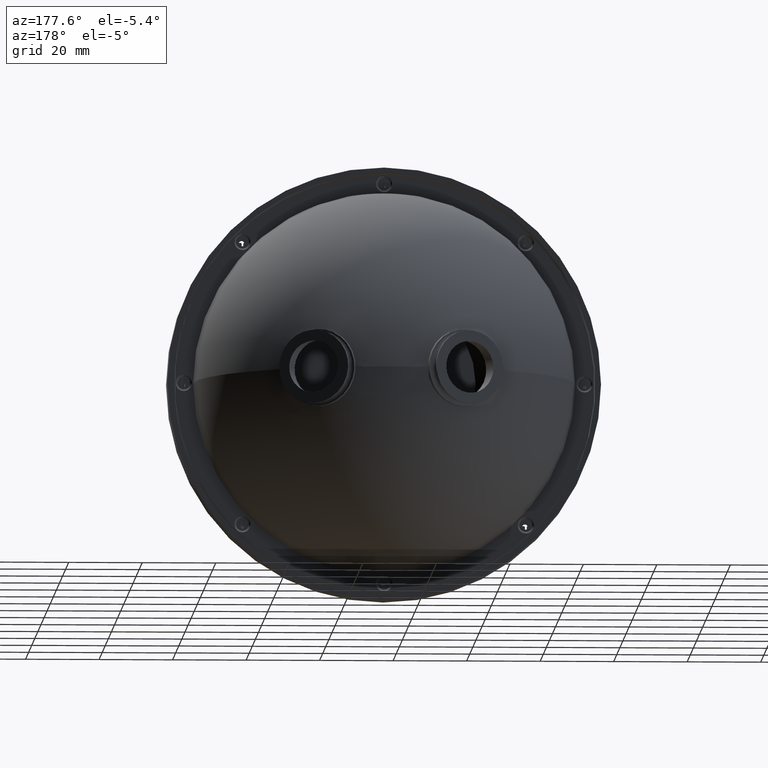
[diagram: clean part render]
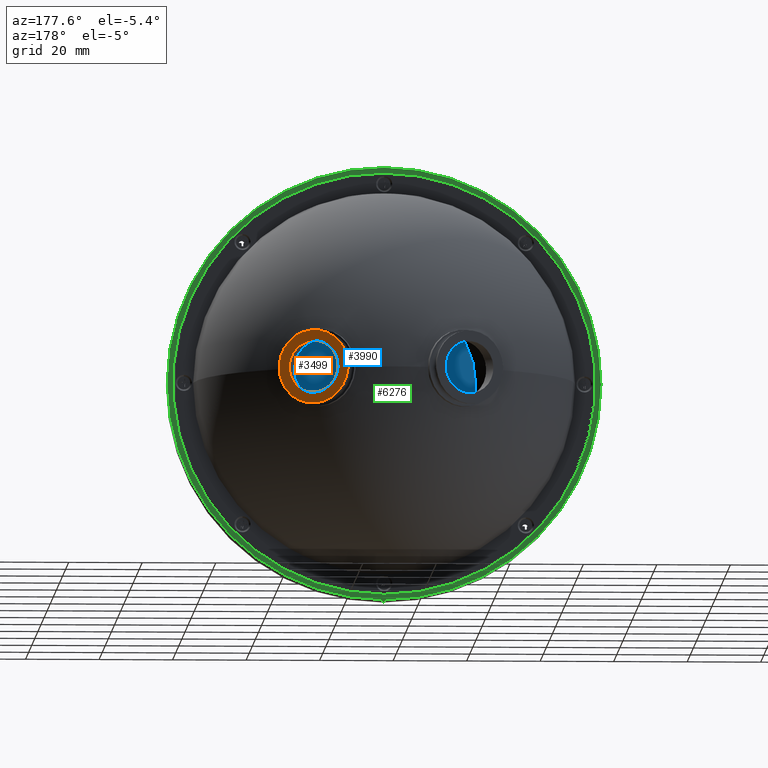
[diagram: same view with three faces highlighted in distinct colors, each labeled with its STEP entity id]
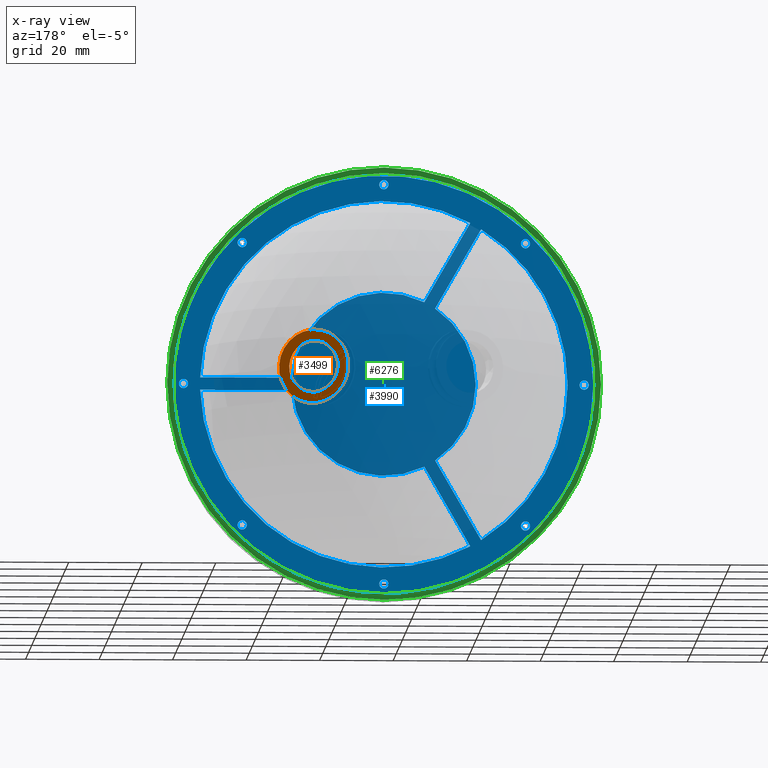
[diagram: x-ray of the same camera — body ghosted, the three highlighted faces saturated]
A machine part, auxiliary view with three faces highlighted in distinct colors.
The next image is the same camera in x-ray (body ghosted, the three faces saturated) — at least one of them is partly hidden behind the body in this view.
Their STEP definitions:

[orange] entity #3499 — the highlighted planar face has unit normal (0.3827, 0.9239, 0).
#103 = CARTESIAN_POINT ( 'NONE',  ( 29.73420159731042745, 33.39161326380353501, -1.117326338284089420E-62 ) ) ;
#182 = ORIENTED_EDGE ( 'NONE', *, *, #4675, .T. ) ;
#236 = CIRCLE ( 'NONE', #991, 10.00000000000000000 ) ;
#254 = EDGE_CURVE ( 'NONE', #2555, #5893, #5644, .T. ) ;
#287 = CIRCLE ( 'NONE', #4168, 7.064285714285714057 ) ;
#793 = CARTESIAN_POINT ( 'NONE',  ( 29.73420159731042745, 33.39161326380353501, -1.117326338284089420E-62 ) ) ;
#991 = AXIS2_PLACEMENT_3D ( 'NONE', #1562, #1018, #5641 ) ;
#1018 = DIRECTION ( 'NONE',  ( 0.3826834323650903369, 0.9238795325112865164, 4.557872517964702724E-64 ) ) ;
#1112 = AXIS2_PLACEMENT_3D ( 'NONE', #2509, #2483, #1559 ) ;
#1301 = DIRECTION ( 'NONE',  ( 0.3826834323650903369, 0.9238795325112865164, 4.557872517964702724E-64 ) ) ;
#1559 = DIRECTION ( 'NONE',  ( 0.04730986693102653268, -0.01959638851689762123, 0.9986880183761410734 ) ) ;
#1562 = CARTESIAN_POINT ( 'NONE',  ( 29.73420159731042745, 33.39161326380353501, -1.117326338284089420E-62 ) ) ;
#2197 = AXIS2_PLACEMENT_3D ( 'NONE', #793, #1301, #5415 ) ;
#2483 = DIRECTION ( 'NONE',  ( 0.3826834323650903369, 0.9238795325112866275, 3.469446951953614189E-18 ) ) ;
#2509 = CARTESIAN_POINT ( 'NONE',  ( 29.73420159731042745, 33.39161326380353501, -1.117326338284089420E-62 ) ) ;
#2549 = CARTESIAN_POINT ( 'NONE',  ( 30.06841201441603673, 33.25317877635201569, 7.055017501242882183 ) ) ;
#2555 = VERTEX_POINT ( 'NONE', #5716 ) ;
#2579 = PLANE ( 'NONE',  #1112 ) ;
#2652 = DIRECTION ( 'NONE',  ( -0.3826834323650903369, -0.9238795325112865164, -4.557872517964702724E-64 ) ) ;
#2907 = DIRECTION ( 'NONE',  ( 0.04730986693102647717, -0.01959638851689719796, 0.9986880183761410734 ) ) ;
#3219 = ORIENTED_EDGE ( 'NONE', *, *, #5829, .T. ) ;
#3243 = EDGE_CURVE ( 'NONE', #4657, #3480, #287, .T. ) ;
#3297 = DIRECTION ( 'NONE',  ( 0.04730986693102647717, -0.01959638851689719796, 0.9986880183761410734 ) ) ;
#3480 = VERTEX_POINT ( 'NONE', #2549 ) ;
#3499 = ADVANCED_FACE ( 'NONE', ( #6172, #5012 ), #2579, .T. ) ;
#3850 = CIRCLE ( 'NONE', #5581, 7.064285714285714057 ) ;
#4168 = AXIS2_PLACEMENT_3D ( 'NONE', #103, #2652, #3297 ) ;
#4464 = EDGE_LOOP ( 'NONE', ( #5977, #3219 ) ) ;
#4543 = CARTESIAN_POINT ( 'NONE',  ( 29.39999118020481816, 33.53004775125504722, -7.055017501242882183 ) ) ;
#4560 = EDGE_LOOP ( 'NONE', ( #5612, #182 ) ) ;
#4657 = VERTEX_POINT ( 'NONE', #4543 ) ;
#4675 = EDGE_CURVE ( 'NONE', #5893, #2555, #236, .T. ) ;
#4919 = CARTESIAN_POINT ( 'NONE',  ( 30.20730026662069534, 33.19564937863456322, 9.986880183761410734 ) ) ;
#5012 = FACE_OUTER_BOUND ( 'NONE', #4560, .T. ) ;
#5307 = DIRECTION ( 'NONE',  ( -0.3826834323650903369, -0.9238795325112865164, -4.557872517964702724E-64 ) ) ;
#5410 = CARTESIAN_POINT ( 'NONE',  ( 29.73420159731042745, 33.39161326380353501, -1.117326338284089420E-62 ) ) ;
#5415 = DIRECTION ( 'NONE',  ( 0.04730986693102651186, -0.01959638851689732286, 0.9986880183761410734 ) ) ;
#5581 = AXIS2_PLACEMENT_3D ( 'NONE', #5410, #5307, #2907 ) ;
#5612 = ORIENTED_EDGE ( 'NONE', *, *, #254, .T. ) ;
#5641 = DIRECTION ( 'NONE',  ( 0.04730986693102651186, -0.01959638851689732286, 0.9986880183761410734 ) ) ;
#5644 = CIRCLE ( 'NONE', #2197, 10.00000000000000000 ) ;
#5716 = CARTESIAN_POINT ( 'NONE',  ( 29.26110292800016310, 33.58757714897250679, -9.986880183761410734 ) ) ;
#5829 = EDGE_CURVE ( 'NONE', #3480, #4657, #3850, .T. ) ;
#5893 = VERTEX_POINT ( 'NONE', #4919 ) ;
#5977 = ORIENTED_EDGE ( 'NONE', *, *, #3243, .T. ) ;
#6172 = FACE_BOUND ( 'NONE', #4464, .T. ) ;

[blue] entity #3990 — the highlighted planar face has unit normal (0, 1, 0).
#45 = CARTESIAN_POINT ( 'NONE',  ( 45.77133852427575533, -17.91086588718419748, -38.53731957466661839 ) ) ;
#55 = FACE_BOUND ( 'NONE', #5394, .T. ) ;
#59 = DIRECTION ( 'NONE',  ( -1.000000000000000000, 0.000000000000000000, -4.639336070329090765E-15 ) ) ;
#60 = CIRCLE ( 'NONE', #936, 1.250000000000001110 ) ;
#115 = PLANE ( 'NONE',  #4454 ) ;
#147 = CARTESIAN_POINT ( 'NONE',  ( 61.73401894960840508, -17.91086588718419748, 5.052028614788056940E-13 ) ) ;
#150 = AXIS2_PLACEMENT_3D ( 'NONE', #1701, #2244, #5940 ) ;
#158 = FACE_BOUND ( 'NONE', #1373, .T. ) ;
#190 = CARTESIAN_POINT ( 'NONE',  ( 8.484018949608405080, -17.91086588718419748, -3.126989831670705242E-13 ) ) ;
#204 = CARTESIAN_POINT ( 'NONE',  ( 48.27133852427575533, -17.91086588718419748, -38.53731957466660418 ) ) ;
#238 = DIRECTION ( 'NONE',  ( -1.000000000000000000, 0.000000000000000000, -5.551115123125777969E-15 ) ) ;
#242 = AXIS2_PLACEMENT_3D ( 'NONE', #5578, #1420, #948 ) ;
#252 = DIRECTION ( 'NONE',  ( -1.000000000000000000, 0.000000000000000000, -5.551115123125762192E-15 ) ) ;
#262 = DIRECTION ( 'NONE',  ( -1.000000000000000000, 0.000000000000000000, -5.551115123125777969E-15 ) ) ;
#377 = EDGE_LOOP ( 'NONE', ( #4659, #735 ) ) ;
#408 = AXIS2_PLACEMENT_3D ( 'NONE', #5826, #663, #262 ) ;
#439 = CARTESIAN_POINT ( 'NONE',  ( -30.05330062505868582, -17.91086588718419748, 38.53731957466627733 ) ) ;
#535 = DIRECTION ( 'NONE',  ( -1.000000000000000000, 0.000000000000000000, -4.639336070329089976E-15 ) ) ;
#563 = CARTESIAN_POINT ( 'NONE',  ( 65.48401894960841219, -17.91086588718419748, -4.825682715831244131E-14 ) ) ;
#603 = DIRECTION ( 'NONE',  ( 0.000000000000000000, 1.000000000000000000, 0.000000000000000000 ) ) ;
#606 = CARTESIAN_POINT ( 'NONE',  ( 8.484018949608405080, -17.91086588718419748, -3.126989831670705242E-13 ) ) ;
#660 = FACE_BOUND ( 'NONE', #2032, .T. ) ;
#663 = DIRECTION ( 'NONE',  ( 0.000000000000000000, 1.000000000000000000, 0.000000000000000000 ) ) ;
#697 = CARTESIAN_POINT ( 'NONE',  ( 9.734018949609039240, -17.91086588718419748, -54.50000000000030553 ) ) ;
#735 = ORIENTED_EDGE ( 'NONE', *, *, #3287, .F. ) ;
#776 = CIRCLE ( 'NONE', #242, 1.250000000000001110 ) ;
#802 = EDGE_CURVE ( 'NONE', #4066, #4029, #4056, .T. ) ;
#819 = VECTOR ( 'NONE', #1834, 1000.000000000000000 ) ;
#830 = VERTEX_POINT ( 'NONE', #1101 ) ;
#838 = DIRECTION ( 'NONE',  ( -1.000000000000000000, 0.000000000000000000, -4.639336070329049744E-15 ) ) ;
#846 = CARTESIAN_POINT ( 'NONE',  ( -15.02928368549254934, -17.91086588718419748, -44.12623481773834300 ) ) ;
#853 = DIRECTION ( 'NONE',  ( -1.000000000000000000, 0.000000000000000000, -5.551115123125777969E-15 ) ) ;
#880 = DIRECTION ( 'NONE',  ( -1.000000000000000000, 0.000000000000000000, -4.639336070329049744E-15 ) ) ;
#892 = CARTESIAN_POINT ( 'NONE',  ( -15.02928368549234150, -17.91086588718419748, 44.12623481773781720 ) ) ;
#915 = VECTOR ( 'NONE', #4655, 999.9999999999998863 ) ;
#936 = AXIS2_PLACEMENT_3D ( 'NONE', #5301, #3787, #5341 ) ;
#948 = DIRECTION ( 'NONE',  ( -1.000000000000000000, 0.000000000000000000, -5.551115123125777969E-15 ) ) ;
#966 = VERTEX_POINT ( 'NONE', #3776 ) ;
#973 = EDGE_CURVE ( 'NONE', #2241, #2166, #5327, .T. ) ;
#1003 = CARTESIAN_POINT ( 'NONE',  ( 7.234018949609037463, -17.91086588718419748, -54.50000000000031974 ) ) ;
#1040 = FACE_BOUND ( 'NONE', #4074, .T. ) ;
#1096 = FACE_OUTER_BOUND ( 'NONE', #3708, .T. ) ;
#1101 = CARTESIAN_POINT ( 'NONE',  ( 9.734018949608152838, -17.91086588718419748, 54.49999999999969447 ) ) ;
#1142 = VERTEX_POINT ( 'NONE', #5041 ) ;
#1147 = VERTEX_POINT ( 'NONE', #1419 ) ;
#1149 = CIRCLE ( 'NONE', #6646, 25.00000000000000000 ) ;
#1154 = CIRCLE ( 'NONE', #6651, 1.250000000000001110 ) ;
#1201 = CARTESIAN_POINT ( 'NONE',  ( 8.484018949608405080, -17.91086588718419748, -3.126989831670705242E-13 ) ) ;
#1218 = DIRECTION ( 'NONE',  ( 0.000000000000000000, 1.000000000000000000, 0.000000000000000000 ) ) ;
#1250 = AXIS2_PLACEMENT_3D ( 'NONE', #2716, #4838, #6245 ) ;
#1279 = DIRECTION ( 'NONE',  ( 0.000000000000000000, 1.000000000000000000, 0.000000000000000000 ) ) ;
#1323 = VECTOR ( 'NONE', #6626, 1000.000000000000000 ) ;
#1327 = ORIENTED_EDGE ( 'NONE', *, *, #5378, .F. ) ;
#1346 = EDGE_CURVE ( 'NONE', #966, #4974, #1901, .T. ) ;
#1365 = AXIS2_PLACEMENT_3D ( 'NONE', #4669, #3106, #2715 ) ;
#1373 = EDGE_LOOP ( 'NONE', ( #2108, #4916 ) ) ;
#1377 = ORIENTED_EDGE ( 'NONE', *, *, #3013, .F. ) ;
#1409 = DIRECTION ( 'NONE',  ( 0.000000000000000000, 1.000000000000000000, 0.000000000000000000 ) ) ;
#1419 = CARTESIAN_POINT ( 'NONE',  ( -2.514804378093888459, -17.91086588718419748, -22.45052082705448626 ) ) ;
#1420 = DIRECTION ( 'NONE',  ( 0.000000000000000000, 1.000000000000000000, 0.000000000000000000 ) ) ;
#1457 = VERTEX_POINT ( 'NONE', #2832 ) ;
#1476 = VERTEX_POINT ( 'NONE', #697 ) ;
#1478 = EDGE_CURVE ( 'NONE', #1880, #3237, #2450, .T. ) ;
#1506 = EDGE_CURVE ( 'NONE', #6056, #1142, #3101, .T. ) ;
#1508 = VERTEX_POINT ( 'NONE', #3549 ) ;
#1523 = LINE ( 'NONE', #4570, #1671 ) ;
#1555 = ORIENTED_EDGE ( 'NONE', *, *, #3956, .F. ) ;
#1568 = CIRCLE ( 'NONE', #1782, 25.00000000000000000 ) ;
#1579 = DIRECTION ( 'NONE',  ( -1.000000000000000000, 0.000000000000000000, -4.639336070329090765E-15 ) ) ;
#1591 = ORIENTED_EDGE ( 'NONE', *, *, #1478, .F. ) ;
#1601 = ORIENTED_EDGE ( 'NONE', *, *, #1960, .T. ) ;
#1652 = CARTESIAN_POINT ( 'NONE',  ( -47.26598105039159492, -17.91086588718419748, -7.616277020548679434E-13 ) ) ;
#1671 = VECTOR ( 'NONE', #5608, 1000.000000000000000 ) ;
#1701 = CARTESIAN_POINT ( 'NONE',  ( -30.05330062505868582, -17.91086588718419748, 38.53731957466627733 ) ) ;
#1782 = AXIS2_PLACEMENT_3D ( 'NONE', #5621, #4085, #4624 ) ;
#1791 = ORIENTED_EDGE ( 'NONE', *, *, #1346, .F. ) ;
#1792 = CIRCLE ( 'NONE', #3531, 1.250000000000001110 ) ;
#1796 = CIRCLE ( 'NONE', #2343, 1.250000000000001110 ) ;
#1834 = DIRECTION ( 'NONE',  ( -0.4999999999999959477, 0.000000000000000000, 0.8660254037844409281 ) ) ;
#1869 = CIRCLE ( 'NONE', #5636, 1.250000000000004663 ) ;
#1877 = CARTESIAN_POINT ( 'NONE',  ( 64.23401894960841219, -17.91086588718419748, 5.169542825045217677E-13 ) ) ;
#1880 = VERTEX_POINT ( 'NONE', #892 ) ;
#1890 = CIRCLE ( 'NONE', #150, 1.250000000000004663 ) ;
#1901 = CIRCLE ( 'NONE', #4494, 1.250000000000004663 ) ;
#1952 = CARTESIAN_POINT ( 'NONE',  ( 47.02133852427459004, -17.91086588718419748, 38.53731957466719393 ) ) ;
#1960 = EDGE_CURVE ( 'NONE', #3476, #2159, #2516, .T. ) ;
#2010 = EDGE_CURVE ( 'NONE', #4974, #966, #1869, .T. ) ;
#2032 = EDGE_LOOP ( 'NONE', ( #3183, #2630, #4587, #1591 ) ) ;
#2091 = CARTESIAN_POINT ( 'NONE',  ( -48.51598105039160913, -17.91086588718419748, -5.701606524206887667E-13 ) ) ;
#2108 = ORIENTED_EDGE ( 'NONE', *, *, #3280, .F. ) ;
#2128 = FACE_BOUND ( 'NONE', #3885, .T. ) ;
#2137 = VERTEX_POINT ( 'NONE', #204 ) ;
#2159 = VERTEX_POINT ( 'NONE', #3925 ) ;
#2166 = VERTEX_POINT ( 'NONE', #3395 ) ;
#2183 = CARTESIAN_POINT ( 'NONE',  ( 8.484018949608405080, -17.91086588718419748, -3.126989831670705242E-13 ) ) ;
#2221 = ORIENTED_EDGE ( 'NONE', *, *, #3363, .F. ) ;
#2241 = VERTEX_POINT ( 'NONE', #2508 ) ;
#2244 = DIRECTION ( 'NONE',  ( 0.000000000000000000, 1.000000000000000000, 0.000000000000000000 ) ) ;
#2251 = EDGE_CURVE ( 'NONE', #2786, #3002, #3298, .T. ) ;
#2262 = EDGE_CURVE ( 'NONE', #1880, #1508, #1523, .T. ) ;
#2291 = ORIENTED_EDGE ( 'NONE', *, *, #5507, .T. ) ;
#2302 = CARTESIAN_POINT ( 'NONE',  ( 13.00741617435375019, -17.91086588718419748, 4.434753816074683108 ) ) ;
#2343 = AXIS2_PLACEMENT_3D ( 'NONE', #3968, #3471, #853 ) ;
#2345 = CARTESIAN_POINT ( 'NONE',  ( -28.80330062505804634, -17.91086588718419748, -38.53731957466752789 ) ) ;
#2348 = ORIENTED_EDGE ( 'NONE', *, *, #4981, .T. ) ;
#2426 = DIRECTION ( 'NONE',  ( 0.000000000000000000, 1.000000000000000000, 0.000000000000000000 ) ) ;
#2438 = AXIS2_PLACEMENT_3D ( 'NONE', #1201, #1279, #3880 ) ;
#2450 = CIRCLE ( 'NONE', #5039, 50.00000000000000000 ) ;
#2466 = DIRECTION ( 'NONE',  ( -1.000000000000000000, 0.000000000000000000, -4.639336070329090765E-15 ) ) ;
#2476 = EDGE_CURVE ( 'NONE', #6367, #1476, #2550, .T. ) ;
#2481 = ORIENTED_EDGE ( 'NONE', *, *, #6359, .T. ) ;
#2508 = CARTESIAN_POINT ( 'NONE',  ( -17.97377005835964425, -17.91086588718419748, -42.42623481773833305 ) ) ;
#2516 = LINE ( 'NONE', #3629, #1323 ) ;
#2550 = CIRCLE ( 'NONE', #5230, 1.250000000000001110 ) ;
#2556 = AXIS2_PLACEMENT_3D ( 'NONE', #5810, #1218, #5371 ) ;
#2630 = ORIENTED_EDGE ( 'NONE', *, *, #2896, .T. ) ;
#2632 = DIRECTION ( 'NONE',  ( 0.000000000000000000, 1.000000000000000000, 0.000000000000000000 ) ) ;
#2670 = FACE_BOUND ( 'NONE', #4263, .T. ) ;
#2671 = EDGE_CURVE ( 'NONE', #2824, #2795, #1568, .T. ) ;
#2694 = VERTEX_POINT ( 'NONE', #45 ) ;
#2715 = DIRECTION ( 'NONE',  ( -1.000000000000000000, 0.000000000000000000, -5.551115123125777969E-15 ) ) ;
#2716 = CARTESIAN_POINT ( 'NONE',  ( 8.484018949608405080, -17.91086588718419748, -3.126989831670705242E-13 ) ) ;
#2730 = FACE_BOUND ( 'NONE', #377, .T. ) ;
#2751 = DIRECTION ( 'NONE',  ( -1.000000000000000000, 0.000000000000000000, -5.551115123125762192E-15 ) ) ;
#2766 = CARTESIAN_POINT ( 'NONE',  ( -5.459290750960981597, -17.91086588718419748, -20.75052082705448697 ) ) ;
#2786 = VERTEX_POINT ( 'NONE', #147 ) ;
#2795 = VERTEX_POINT ( 'NONE', #5352 ) ;
#2824 = VERTEX_POINT ( 'NONE', #2766 ) ;
#2832 = CARTESIAN_POINT ( 'NONE',  ( -28.80330062505868582, -17.91086588718419748, 38.53731957466628444 ) ) ;
#2872 = DIRECTION ( 'NONE',  ( 0.000000000000000000, 1.000000000000000000, 0.000000000000000000 ) ) ;
#2896 = EDGE_CURVE ( 'NONE', #1508, #3995, #4275, .T. ) ;
#2917 = CARTESIAN_POINT ( 'NONE',  ( -46.01598105039158781, -17.91086588718419748, -7.558285319669565561E-13 ) ) ;
#2961 = DIRECTION ( 'NONE',  ( 0.000000000000000000, 1.000000000000000000, 0.000000000000000000 ) ) ;
#2984 = AXIS2_PLACEMENT_3D ( 'NONE', #5510, #5639, #880 ) ;
#2989 = FACE_BOUND ( 'NONE', #5951, .T. ) ;
#3002 = VERTEX_POINT ( 'NONE', #1877 ) ;
#3012 = DIRECTION ( 'NONE',  ( -1.000000000000000000, 0.000000000000000000, -5.551115123125777969E-15 ) ) ;
#3013 = EDGE_CURVE ( 'NONE', #3002, #2786, #1792, .T. ) ;
#3076 = VECTOR ( 'NONE', #4796, 1000.000000000000000 ) ;
#3101 = CIRCLE ( 'NONE', #5133, 1.250000000000001110 ) ;
#3106 = DIRECTION ( 'NONE',  ( 0.000000000000000000, 1.000000000000000000, 0.000000000000000000 ) ) ;
#3111 = DIRECTION ( 'NONE',  ( 0.000000000000000000, 1.000000000000000000, 0.000000000000000000 ) ) ;
#3117 = CARTESIAN_POINT ( 'NONE',  ( 33.42615197788006043, -17.91086588718419748, 1.699999999999802780 ) ) ;
#3156 = CARTESIAN_POINT ( 'NONE',  ( -30.05330062505804989, -17.91086588718419748, -38.53731957466753499 ) ) ;
#3183 = ORIENTED_EDGE ( 'NONE', *, *, #2262, .T. ) ;
#3237 = VERTEX_POINT ( 'NONE', #4712 ) ;
#3249 = DIRECTION ( 'NONE',  ( -1.000000000000000000, 0.000000000000000000, -4.639336070329090765E-15 ) ) ;
#3251 = EDGE_CURVE ( 'NONE', #4029, #4066, #5347, .T. ) ;
#3280 = EDGE_CURVE ( 'NONE', #4832, #6516, #60, .T. ) ;
#3287 = EDGE_CURVE ( 'NONE', #1476, #6367, #1796, .T. ) ;
#3298 = CIRCLE ( 'NONE', #2984, 1.250000000000001110 ) ;
#3309 = CIRCLE ( 'NONE', #4153, 50.00000000000000000 ) ;
#3363 = EDGE_CURVE ( 'NONE', #2137, #2694, #4899, .T. ) ;
#3374 = CARTESIAN_POINT ( 'NONE',  ( -30.05330062505804989, -17.91086588718419748, -38.53731957466753499 ) ) ;
#3390 = ORIENTED_EDGE ( 'NONE', *, *, #6199, .F. ) ;
#3395 = CARTESIAN_POINT ( 'NONE',  ( -17.97377005835944175, -17.91086588718419748, 42.42623481773782146 ) ) ;
#3452 = ORIENTED_EDGE ( 'NONE', *, *, #2671, .T. ) ;
#3471 = DIRECTION ( 'NONE',  ( 0.000000000000000000, 1.000000000000000000, 0.000000000000000000 ) ) ;
#3476 = VERTEX_POINT ( 'NONE', #3586 ) ;
#3485 = DIRECTION ( 'NONE',  ( -1.000000000000000000, 0.000000000000000000, -5.551115123125777969E-15 ) ) ;
#3490 = DIRECTION ( 'NONE',  ( 0.000000000000000000, 1.000000000000000000, 0.000000000000000000 ) ) ;
#3531 = AXIS2_PLACEMENT_3D ( 'NONE', #5177, #6591, #6663 ) ;
#3549 = CARTESIAN_POINT ( 'NONE',  ( -2.514804378093775661, -17.91086588718419748, 22.45052082705387875 ) ) ;
#3556 = DIRECTION ( 'NONE',  ( -1.000000000000000000, 0.000000000000000000, -5.551115123125762192E-15 ) ) ;
#3586 = CARTESIAN_POINT ( 'NONE',  ( 58.45511059267741416, -17.91086588718419748, -1.700000000000081668 ) ) ;
#3619 = EDGE_CURVE ( 'NONE', #3995, #3237, #5805, .T. ) ;
#3629 = CARTESIAN_POINT ( 'NONE',  ( 2.381710872984811544, -17.91086588718419748, -1.700000000000341904 ) ) ;
#3642 = FACE_BOUND ( 'NONE', #6060, .T. ) ;
#3708 = EDGE_LOOP ( 'NONE', ( #5496, #4631 ) ) ;
#3776 = CARTESIAN_POINT ( 'NONE',  ( -31.30330062505805344, -17.91086588718419748, -38.53731957466754210 ) ) ;
#3787 = DIRECTION ( 'NONE',  ( 0.000000000000000000, 1.000000000000000000, 0.000000000000000000 ) ) ;
#3846 = ORIENTED_EDGE ( 'NONE', *, *, #2251, .F. ) ;
#3870 = CARTESIAN_POINT ( 'NONE',  ( 8.484018949608405080, -17.91086588718419748, -3.126989831670705242E-13 ) ) ;
#3880 = DIRECTION ( 'NONE',  ( -1.000000000000000000, 0.000000000000000000, -4.639336070329090765E-15 ) ) ;
#3884 = LINE ( 'NONE', #2302, #4776 ) ;
#3885 = EDGE_LOOP ( 'NONE', ( #3846, #1377 ) ) ;
#3911 = EDGE_CURVE ( 'NONE', #1142, #6056, #776, .T. ) ;
#3925 = CARTESIAN_POINT ( 'NONE',  ( 33.42615197788007464, -17.91086588718419748, -1.700000000000196909 ) ) ;
#3956 = EDGE_CURVE ( 'NONE', #5346, #1457, #4562, .T. ) ;
#3962 = ORIENTED_EDGE ( 'NONE', *, *, #2010, .F. ) ;
#3968 = CARTESIAN_POINT ( 'NONE',  ( 8.484018949609039240, -17.91086588718419748, -54.50000000000031264 ) ) ;
#3990 = ADVANCED_FACE ( 'NONE', ( #2989, #660, #5259, #3642, #2128, #1040, #2730, #55, #158, #2670, #6163, #1096 ), #115, .T. ) ;
#3995 = VERTEX_POINT ( 'NONE', #3117 ) ;
#4029 = VERTEX_POINT ( 'NONE', #563 ) ;
#4056 = CIRCLE ( 'NONE', #5978, 56.99999999999999289 ) ;
#4066 = VERTEX_POINT ( 'NONE', #2091 ) ;
#4074 = EDGE_LOOP ( 'NONE', ( #3390, #2221 ) ) ;
#4085 = DIRECTION ( 'NONE',  ( 0.000000000000000000, 1.000000000000000000, 0.000000000000000000 ) ) ;
#4153 = AXIS2_PLACEMENT_3D ( 'NONE', #5655, #3111, #1579 ) ;
#4175 = ORIENTED_EDGE ( 'NONE', *, *, #1506, .F. ) ;
#4184 = DIRECTION ( 'NONE',  ( 0.000000000000000000, 1.000000000000000000, 0.000000000000000000 ) ) ;
#4197 = CARTESIAN_POINT ( 'NONE',  ( 48.27133852427459004, -17.91086588718419748, 38.53731957466720104 ) ) ;
#4249 = CARTESIAN_POINT ( 'NONE',  ( 8.484018949608405080, -17.91086588718419748, -3.126989831670705242E-13 ) ) ;
#4251 = CIRCLE ( 'NONE', #1365, 1.250000000000001110 ) ;
#4263 = EDGE_LOOP ( 'NONE', ( #1555, #4519 ) ) ;
#4275 = CIRCLE ( 'NONE', #5338, 25.00000000000000000 ) ;
#4319 = EDGE_LOOP ( 'NONE', ( #2291, #2348, #1327, #1601 ) ) ;
#4454 = AXIS2_PLACEMENT_3D ( 'NONE', #2183, #603, #535 ) ;
#4466 = AXIS2_PLACEMENT_3D ( 'NONE', #5941, #2961, #238 ) ;
#4494 = AXIS2_PLACEMENT_3D ( 'NONE', #3374, #2872, #252 ) ;
#4519 = ORIENTED_EDGE ( 'NONE', *, *, #6162, .F. ) ;
#4562 = CIRCLE ( 'NONE', #6598, 1.250000000000004663 ) ;
#4570 = CARTESIAN_POINT ( 'NONE',  ( 13.00741617435373243, -17.91086588718419748, -4.434753816075330590 ) ) ;
#4587 = ORIENTED_EDGE ( 'NONE', *, *, #3619, .T. ) ;
#4624 = DIRECTION ( 'NONE',  ( -1.000000000000000000, 0.000000000000000000, -4.639336070329090765E-15 ) ) ;
#4627 = LINE ( 'NONE', #6018, #915 ) ;
#4631 = ORIENTED_EDGE ( 'NONE', *, *, #802, .T. ) ;
#4655 = DIRECTION ( 'NONE',  ( 0.5000000000000001110, 0.000000000000000000, 0.8660254037844387076 ) ) ;
#4659 = ORIENTED_EDGE ( 'NONE', *, *, #2476, .F. ) ;
#4660 = ORIENTED_EDGE ( 'NONE', *, *, #6156, .T. ) ;
#4669 = CARTESIAN_POINT ( 'NONE',  ( 8.484018949608152838, -17.91086588718419748, 54.49999999999968736 ) ) ;
#4702 = CARTESIAN_POINT ( 'NONE',  ( 2.381710872984796001, -17.91086588718419748, 1.699999999999658007 ) ) ;
#4712 = CARTESIAN_POINT ( 'NONE',  ( 58.45511059267739995, -17.91086588718419748, 1.699999999999918243 ) ) ;
#4713 = CIRCLE ( 'NONE', #408, 1.250000000000001110 ) ;
#4776 = VECTOR ( 'NONE', #6446, 999.9999999999998863 ) ;
#4796 = DIRECTION ( 'NONE',  ( 1.000000000000000000, 0.000000000000000000, 4.639336070329089976E-15 ) ) ;
#4832 = VERTEX_POINT ( 'NONE', #1652 ) ;
#4838 = DIRECTION ( 'NONE',  ( 0.000000000000000000, 1.000000000000000000, 0.000000000000000000 ) ) ;
#4843 = VERTEX_POINT ( 'NONE', #5295 ) ;
#4899 = CIRCLE ( 'NONE', #4466, 1.250000000000001110 ) ;
#4916 = ORIENTED_EDGE ( 'NONE', *, *, #5756, .F. ) ;
#4974 = VERTEX_POINT ( 'NONE', #2345 ) ;
#4981 = EDGE_CURVE ( 'NONE', #1147, #5005, #3884, .T. ) ;
#5005 = VERTEX_POINT ( 'NONE', #846 ) ;
#5039 = AXIS2_PLACEMENT_3D ( 'NONE', #190, #5595, #2466 ) ;
#5041 = CARTESIAN_POINT ( 'NONE',  ( 45.77133852427459004, -17.91086588718419748, 38.53731957466718683 ) ) ;
#5087 = ORIENTED_EDGE ( 'NONE', *, *, #6079, .F. ) ;
#5111 = ORIENTED_EDGE ( 'NONE', *, *, #3911, .F. ) ;
#5121 = CARTESIAN_POINT ( 'NONE',  ( -31.30330062505869293, -17.91086588718419748, 38.53731957466627023 ) ) ;
#5133 = AXIS2_PLACEMENT_3D ( 'NONE', #1952, #2426, #3012 ) ;
#5177 = CARTESIAN_POINT ( 'NONE',  ( 62.98401894960840508, -17.91086588718419748, 5.110020315667170813E-13 ) ) ;
#5203 = DIRECTION ( 'NONE',  ( 0.000000000000000000, 1.000000000000000000, 0.000000000000000000 ) ) ;
#5230 = AXIS2_PLACEMENT_3D ( 'NONE', #5959, #6062, #3485 ) ;
#5259 = FACE_BOUND ( 'NONE', #4319, .T. ) ;
#5295 = CARTESIAN_POINT ( 'NONE',  ( 7.234018949608151061, -17.91086588718419748, 54.49999999999968026 ) ) ;
#5301 = CARTESIAN_POINT ( 'NONE',  ( -46.01598105039158781, -17.91086588718419748, -7.558285319669565561E-13 ) ) ;
#5327 = CIRCLE ( 'NONE', #2438, 50.00000000000000000 ) ;
#5338 = AXIS2_PLACEMENT_3D ( 'NONE', #3870, #1409, #5921 ) ;
#5341 = DIRECTION ( 'NONE',  ( -1.000000000000000000, 0.000000000000000000, -4.639336070329049744E-15 ) ) ;
#5346 = VERTEX_POINT ( 'NONE', #5121 ) ;
#5347 = CIRCLE ( 'NONE', #1250, 56.99999999999999289 ) ;
#5352 = CARTESIAN_POINT ( 'NONE',  ( -5.459290750960873240, -17.91086588718419748, 20.75052082705389367 ) ) ;
#5371 = DIRECTION ( 'NONE',  ( -1.000000000000000000, 0.000000000000000000, -5.551115123125777969E-15 ) ) ;
#5378 = EDGE_CURVE ( 'NONE', #3476, #5005, #3309, .T. ) ;
#5394 = EDGE_LOOP ( 'NONE', ( #1791, #3962 ) ) ;
#5396 = ORIENTED_EDGE ( 'NONE', *, *, #5620, .F. ) ;
#5496 = ORIENTED_EDGE ( 'NONE', *, *, #3251, .T. ) ;
#5507 = EDGE_CURVE ( 'NONE', #2159, #1147, #1149, .T. ) ;
#5510 = CARTESIAN_POINT ( 'NONE',  ( 62.98401894960840508, -17.91086588718419748, 5.110020315667170813E-13 ) ) ;
#5578 = CARTESIAN_POINT ( 'NONE',  ( 47.02133852427459004, -17.91086588718419748, 38.53731957466719393 ) ) ;
#5595 = DIRECTION ( 'NONE',  ( 0.000000000000000000, 1.000000000000000000, 0.000000000000000000 ) ) ;
#5606 = ORIENTED_EDGE ( 'NONE', *, *, #973, .F. ) ;
#5608 = DIRECTION ( 'NONE',  ( 0.4999999999999959477, 0.000000000000000000, -0.8660254037844409281 ) ) ;
#5620 = EDGE_CURVE ( 'NONE', #4843, #830, #4713, .T. ) ;
#5621 = CARTESIAN_POINT ( 'NONE',  ( 8.484018949608405080, -17.91086588718419748, -3.126989831670705242E-13 ) ) ;
#5636 = AXIS2_PLACEMENT_3D ( 'NONE', #3156, #5203, #2751 ) ;
#5639 = DIRECTION ( 'NONE',  ( 0.000000000000000000, 1.000000000000000000, 0.000000000000000000 ) ) ;
#5655 = CARTESIAN_POINT ( 'NONE',  ( 8.484018949608405080, -17.91086588718419748, -3.126989831670705242E-13 ) ) ;
#5756 = EDGE_CURVE ( 'NONE', #6516, #4832, #1154, .T. ) ;
#5762 = EDGE_LOOP ( 'NONE', ( #5396, #5087 ) ) ;
#5805 = LINE ( 'NONE', #4702, #3076 ) ;
#5810 = CARTESIAN_POINT ( 'NONE',  ( 47.02133852427575533, -17.91086588718419748, -38.53731957466661129 ) ) ;
#5823 = CARTESIAN_POINT ( 'NONE',  ( -44.76598105039158781, -17.91086588718419748, -7.498762810291518698E-13 ) ) ;
#5826 = CARTESIAN_POINT ( 'NONE',  ( 8.484018949608152838, -17.91086588718419748, 54.49999999999968736 ) ) ;
#5921 = DIRECTION ( 'NONE',  ( -1.000000000000000000, 0.000000000000000000, -4.639336070329090765E-15 ) ) ;
#5940 = DIRECTION ( 'NONE',  ( -1.000000000000000000, 0.000000000000000000, -5.551115123125762192E-15 ) ) ;
#5941 = CARTESIAN_POINT ( 'NONE',  ( 47.02133852427575533, -17.91086588718419748, -38.53731957466661129 ) ) ;
#5951 = EDGE_LOOP ( 'NONE', ( #2481, #3452, #4660, #5606 ) ) ;
#5959 = CARTESIAN_POINT ( 'NONE',  ( 8.484018949609039240, -17.91086588718419748, -54.50000000000031264 ) ) ;
#5978 = AXIS2_PLACEMENT_3D ( 'NONE', #4249, #4184, #3249 ) ;
#6018 = CARTESIAN_POINT ( 'NONE',  ( 10.06292980148666061, -17.91086588718419748, 6.134753816074683286 ) ) ;
#6056 = VERTEX_POINT ( 'NONE', #4197 ) ;
#6060 = EDGE_LOOP ( 'NONE', ( #5111, #4175 ) ) ;
#6062 = DIRECTION ( 'NONE',  ( 0.000000000000000000, 1.000000000000000000, 0.000000000000000000 ) ) ;
#6079 = EDGE_CURVE ( 'NONE', #830, #4843, #4251, .T. ) ;
#6156 = EDGE_CURVE ( 'NONE', #2795, #2166, #6452, .T. ) ;
#6162 = EDGE_CURVE ( 'NONE', #1457, #5346, #1890, .T. ) ;
#6163 = FACE_BOUND ( 'NONE', #5762, .T. ) ;
#6199 = EDGE_CURVE ( 'NONE', #2694, #2137, #6617, .T. ) ;
#6245 = DIRECTION ( 'NONE',  ( -1.000000000000000000, 0.000000000000000000, -4.639336070329090765E-15 ) ) ;
#6316 = CARTESIAN_POINT ( 'NONE',  ( 10.06292980148663219, -17.91086588718419748, -6.134753816075316557 ) ) ;
#6359 = EDGE_CURVE ( 'NONE', #2241, #2824, #4627, .T. ) ;
#6367 = VERTEX_POINT ( 'NONE', #1003 ) ;
#6446 = DIRECTION ( 'NONE',  ( -0.5000000000000001110, 0.000000000000000000, -0.8660254037844387076 ) ) ;
#6452 = LINE ( 'NONE', #6316, #819 ) ;
#6516 = VERTEX_POINT ( 'NONE', #5823 ) ;
#6573 = DIRECTION ( 'NONE',  ( 0.000000000000000000, 1.000000000000000000, 0.000000000000000000 ) ) ;
#6591 = DIRECTION ( 'NONE',  ( 0.000000000000000000, 1.000000000000000000, 0.000000000000000000 ) ) ;
#6598 = AXIS2_PLACEMENT_3D ( 'NONE', #439, #3490, #3556 ) ;
#6617 = CIRCLE ( 'NONE', #2556, 1.250000000000001110 ) ;
#6626 = DIRECTION ( 'NONE',  ( -1.000000000000000000, 0.000000000000000000, -4.639336070329089976E-15 ) ) ;
#6646 = AXIS2_PLACEMENT_3D ( 'NONE', #606, #2632, #59 ) ;
#6651 = AXIS2_PLACEMENT_3D ( 'NONE', #2917, #6573, #838 ) ;
#6663 = DIRECTION ( 'NONE',  ( -1.000000000000000000, 0.000000000000000000, -4.639336070329049744E-15 ) ) ;

[green] entity #6276 — the highlighted planar face has unit normal (0, 1, 0).
#102 = DIRECTION ( 'NONE',  ( 0.000000000000000000, 0.000000000000000000, 1.000000000000000000 ) ) ;
#205 = FACE_BOUND ( 'NONE', #5846, .T. ) ;
#258 = CARTESIAN_POINT ( 'NONE',  ( 8.484018949608371329, -15.91086588718419748, 58.99999999999955946 ) ) ;
#380 = CIRCLE ( 'NONE', #4152, 59.00000000000000711 ) ;
#746 = DIRECTION ( 'NONE',  ( 0.000000000000000000, -0.000000000000000000, 1.000000000000000000 ) ) ;
#903 = CARTESIAN_POINT ( 'NONE',  ( 8.484018949608364224, -15.91086588718419748, -4.407216807850953903E-13 ) ) ;
#997 = CARTESIAN_POINT ( 'NONE',  ( 8.484018949608371329, -15.91086588718419748, -57.50000000000044764 ) ) ;
#1000 = EDGE_CURVE ( 'NONE', #2712, #6607, #380, .T. ) ;
#1251 = VERTEX_POINT ( 'NONE', #997 ) ;
#1258 = DIRECTION ( 'NONE',  ( 0.000000000000000000, 1.000000000000000000, 0.000000000000000000 ) ) ;
#1825 = CARTESIAN_POINT ( 'NONE',  ( 8.484018949608364224, -15.91086588718419748, -4.407216807850953903E-13 ) ) ;
#1829 = DIRECTION ( 'NONE',  ( 0.000000000000000000, 0.000000000000000000, 1.000000000000000000 ) ) ;
#2327 = DIRECTION ( 'NONE',  ( 0.000000000000000000, 0.000000000000000000, 1.000000000000000000 ) ) ;
#2335 = DIRECTION ( 'NONE',  ( 0.000000000000000000, 0.000000000000000000, 1.000000000000000000 ) ) ;
#2611 = CARTESIAN_POINT ( 'NONE',  ( 8.484018949608364224, -15.91086588718419748, -4.407216807850953903E-13 ) ) ;
#2712 = VERTEX_POINT ( 'NONE', #5789 ) ;
#2750 = AXIS2_PLACEMENT_3D ( 'NONE', #2611, #5244, #102 ) ;
#3279 = DIRECTION ( 'NONE',  ( 0.000000000000000000, 1.000000000000000000, 0.000000000000000000 ) ) ;
#4133 = ORIENTED_EDGE ( 'NONE', *, *, #6073, .F. ) ;
#4152 = AXIS2_PLACEMENT_3D ( 'NONE', #1825, #3279, #2335 ) ;
#4327 = FACE_OUTER_BOUND ( 'NONE', #6114, .T. ) ;
#4539 = ORIENTED_EDGE ( 'NONE', *, *, #5208, .T. ) ;
#4793 = CIRCLE ( 'NONE', #2750, 57.50000000000000000 ) ;
#4986 = EDGE_CURVE ( 'NONE', #1251, #6622, #6385, .T. ) ;
#5208 = EDGE_CURVE ( 'NONE', #6607, #2712, #6376, .T. ) ;
#5244 = DIRECTION ( 'NONE',  ( 0.000000000000000000, 1.000000000000000000, 0.000000000000000000 ) ) ;
#5388 = CARTESIAN_POINT ( 'NONE',  ( 8.484018949608364224, -15.91086588718419748, 57.49999999999955946 ) ) ;
#5758 = AXIS2_PLACEMENT_3D ( 'NONE', #5883, #1258, #746 ) ;
#5789 = CARTESIAN_POINT ( 'NONE',  ( 8.484018949608364224, -15.91086588718419748, -59.00000000000044764 ) ) ;
#5838 = AXIS2_PLACEMENT_3D ( 'NONE', #903, #6466, #2327 ) ;
#5846 = EDGE_LOOP ( 'NONE', ( #4133, #6406 ) ) ;
#5883 = CARTESIAN_POINT ( 'NONE',  ( 8.484018949608364224, -15.91086588718419748, -4.407216807850953903E-13 ) ) ;
#5972 = CARTESIAN_POINT ( 'NONE',  ( 8.484018949608364224, -15.91086588718419748, -4.407216807850953903E-13 ) ) ;
#6073 = EDGE_CURVE ( 'NONE', #6622, #1251, #4793, .T. ) ;
#6114 = EDGE_LOOP ( 'NONE', ( #6579, #4539 ) ) ;
#6276 = ADVANCED_FACE ( 'NONE', ( #205, #4327 ), #6379, .T. ) ;
#6376 = CIRCLE ( 'NONE', #5838, 59.00000000000000711 ) ;
#6379 = PLANE ( 'NONE',  #5758 ) ;
#6385 = CIRCLE ( 'NONE', #6494, 57.50000000000000000 ) ;
#6406 = ORIENTED_EDGE ( 'NONE', *, *, #4986, .F. ) ;
#6413 = DIRECTION ( 'NONE',  ( 0.000000000000000000, 1.000000000000000000, 0.000000000000000000 ) ) ;
#6466 = DIRECTION ( 'NONE',  ( 0.000000000000000000, 1.000000000000000000, 0.000000000000000000 ) ) ;
#6494 = AXIS2_PLACEMENT_3D ( 'NONE', #5972, #6413, #1829 ) ;
#6579 = ORIENTED_EDGE ( 'NONE', *, *, #1000, .T. ) ;
#6607 = VERTEX_POINT ( 'NONE', #258 ) ;
#6622 = VERTEX_POINT ( 'NONE', #5388 ) ;